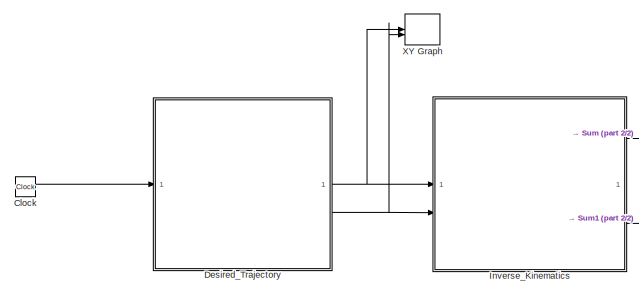
[diagram: root canvas - part 1/2, middle left region]
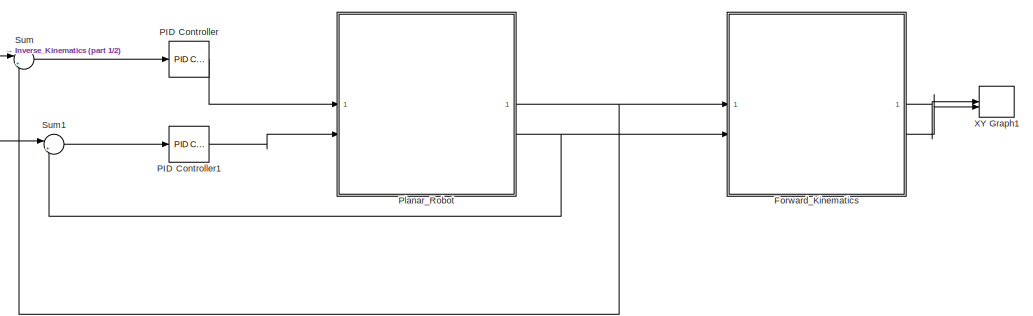
[diagram: root canvas - part 2/2, middle right region]
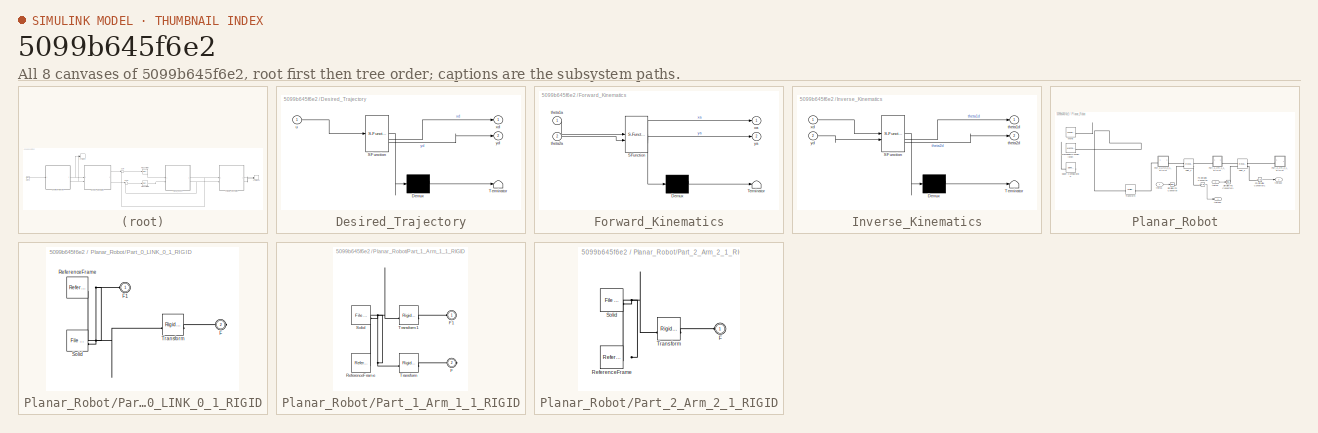
[diagram: thumbnail index - all 8 canvases of the model, root first then tree order]
MODEL slx_5099b645f6e2
KIND model
CONFIG AbsTol = auto
CONFIG EnableMultiTasking = off
CONFIG FixedStep = auto
CONFIG MaxStep = auto
CONFIG MinStep = auto
CONFIG RelTol = 1e-3
CONFIG SampleTimeConstraint = Unconstrained
CONFIG SolverName = VariableStepAuto
CONFIG StartTime = 0.0
CONFIG StopTime = 30
WORKSPACE source: external: MATLAB File  (data not in archive)
BLOCK [Clock] Clock
BLOCK [SubSystem] Desired_Trajectory
  ErrorFcn = Stateflow.Translate.translate
  PermitHierarchicalResolution = ExplicitOnly
  SFBlockType = MATLAB Function
  TreatAsAtomicUnit = on
BLOCK [Demux] Desired_Trajectory/ Demux 
  Outputs = 1
BLOCK [S-Function] Desired_Trajectory/ SFunction 
  EnableBusSupport = on
  FunctionName = sf_sfun
  PortCounts = [1 3]
  SFcnIsStateOwnerBlock = off
  SFunctionDeploymentMode = off
  Tag = Stateflow S-Function 2
BLOCK [Terminator] Desired_Trajectory/ Terminator 
BLOCK [Inport] Desired_Trajectory/u
BLOCK [Outport] Desired_Trajectory/xd
BLOCK [Outport] Desired_Trajectory/yd
  Port = 2
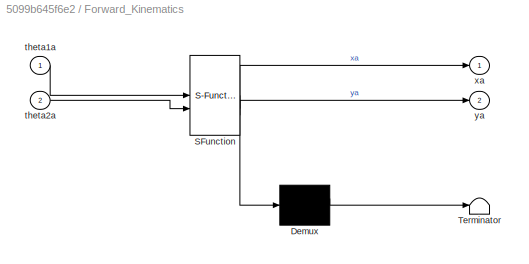
BLOCK [SubSystem] Forward_Kinematics
  ErrorFcn = Stateflow.Translate.translate
  PermitHierarchicalResolution = ExplicitOnly
  SFBlockType = MATLAB Function
  TreatAsAtomicUnit = on
BLOCK [Demux] Forward_Kinematics/ Demux 
  Outputs = 1
BLOCK [S-Function] Forward_Kinematics/ SFunction 
  EnableBusSupport = on
  FunctionName = sf_sfun
  PortCounts = [2 3]
  SFcnIsStateOwnerBlock = off
  SFunctionDeploymentMode = off
  Tag = Stateflow S-Function 3
BLOCK [Terminator] Forward_Kinematics/ Terminator 
BLOCK [Inport] Forward_Kinematics/theta1a
BLOCK [Inport] Forward_Kinematics/theta2a
  Port = 2
BLOCK [Outport] Forward_Kinematics/xa
BLOCK [Outport] Forward_Kinematics/ya
  Port = 2
BLOCK [SubSystem] Inverse_Kinematics
  ErrorFcn = Stateflow.Translate.translate
  PermitHierarchicalResolution = ExplicitOnly
  SFBlockType = MATLAB Function
  TreatAsAtomicUnit = on
BLOCK [Demux] Inverse_Kinematics/ Demux 
  Outputs = 1
BLOCK [S-Function] Inverse_Kinematics/ SFunction 
  EnableBusSupport = on
  FunctionName = sf_sfun
  PortCounts = [2 3]
  SFcnIsStateOwnerBlock = off
  SFunctionDeploymentMode = off
  Tag = Stateflow S-Function 1
BLOCK [Terminator] Inverse_Kinematics/ Terminator 
BLOCK [Outport] Inverse_Kinematics/theta1d
BLOCK [Outport] Inverse_Kinematics/theta2d
  Port = 2
BLOCK [Inport] Inverse_Kinematics/xd
BLOCK [Inport] Inverse_Kinematics/yd
  Port = 2
BLOCK [Reference] PID Controller  REF=slpidlib/PID Controller
  LibrarySourceBlock = simulink/Continuous/PID Controller
  SourceBlock = slpidlib/PID Controller
  SourceType = PID 1dof
BLOCK [Reference] PID Controller1  REF=slpidlib/PID Controller
  LibrarySourceBlock = simulink/Continuous/PID Controller
  SourceBlock = slpidlib/PID Controller
  SourceType = PID 1dof
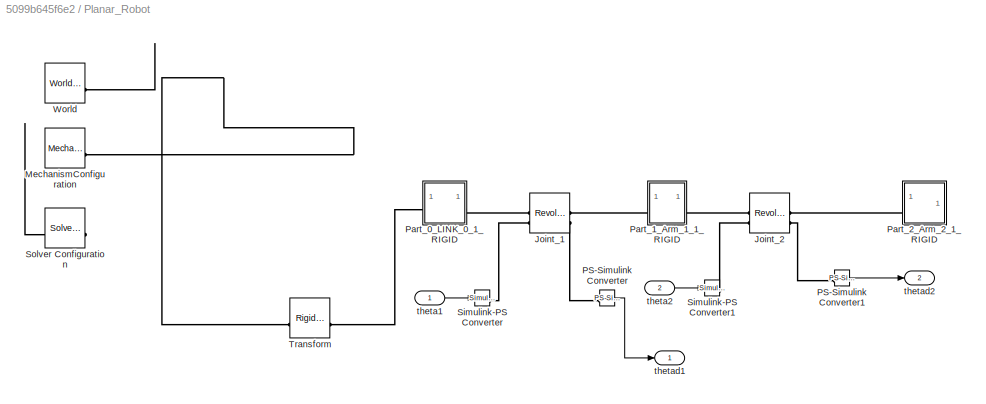
BLOCK [SubSystem] Planar_Robot
BLOCK [Reference] Planar_Robot/Joint_1  REF=sm_lib/Joints/Revolute Joint
  SourceBlock = sm_lib/Joints/Revolute Joint
  SourceType = Revolute Joint
BLOCK [Reference] Planar_Robot/Joint_2  REF=sm_lib/Joints/Revolute Joint
  SourceBlock = sm_lib/Joints/Revolute Joint
  SourceType = Revolute Joint
BLOCK [Reference] Planar_Robot/MechanismConfiguration  REF=sm_lib/Utilities/Mechanism
Configuration
  SourceBlock = sm_lib/Utilities/Mechanism\nConfiguration
  SourceType = Mechanism\nConfiguration
BLOCK [Reference] Planar_Robot/PS-Simulink Converter  REF=nesl_utility/PS-Simulink
Converter
  SourceBlock = nesl_utility/PS-Simulink\nConverter
  SourceType = PS-Simulink\nConverter
BLOCK [Reference] Planar_Robot/PS-Simulink Converter1  REF=nesl_utility/PS-Simulink
Converter
  SourceBlock = nesl_utility/PS-Simulink\nConverter
  SourceType = PS-Simulink\nConverter
BLOCK [SubSystem] Planar_Robot/Part_0_LINK_0_1_RIGID
BLOCK [PMIOPort] Planar_Robot/Part_0_LINK_0_1_RIGID/F
  Port = 2
  Side = Right
BLOCK [PMIOPort] Planar_Robot/Part_0_LINK_0_1_RIGID/F1
  Side = Left
BLOCK [Reference] Planar_Robot/Part_0_LINK_0_1_RIGID/ReferenceFrame  REF=sm_lib/Frames and
Transforms/Reference
Frame
  SourceBlock = sm_lib/Frames and\nTransforms/Reference\nFrame
  SourceType = Reference\nFrame
BLOCK [Reference] Planar_Robot/Part_0_LINK_0_1_RIGID/Solid  REF=sm_lib/Body Elements/File Solid
  SourceBlock = sm_lib/Body Elements/File Solid
  SourceType = File Solid
BLOCK [Reference] Planar_Robot/Part_0_LINK_0_1_RIGID/Transform  REF=sm_lib/Frames and
Transforms/Rigid
Transform
  SourceBlock = sm_lib/Frames and\nTransforms/Rigid\nTransform
  SourceType = Rigid\nTransform
BLOCK [SubSystem] Planar_Robot/Part_1_Arm_1_1_RIGID
BLOCK [PMIOPort] Planar_Robot/Part_1_Arm_1_1_RIGID/F
  Port = 2
  Side = Right
BLOCK [PMIOPort] Planar_Robot/Part_1_Arm_1_1_RIGID/F1
  Side = Left
BLOCK [Reference] Planar_Robot/Part_1_Arm_1_1_RIGID/ReferenceFrame  REF=sm_lib/Frames and
Transforms/Reference
Frame
  SourceBlock = sm_lib/Frames and\nTransforms/Reference\nFrame
  SourceType = Reference\nFrame
BLOCK [Reference] Planar_Robot/Part_1_Arm_1_1_RIGID/Solid  REF=sm_lib/Body Elements/File Solid
  SourceBlock = sm_lib/Body Elements/File Solid
  SourceType = File Solid
BLOCK [Reference] Planar_Robot/Part_1_Arm_1_1_RIGID/Transform  REF=sm_lib/Frames and
Transforms/Rigid
Transform
  SourceBlock = sm_lib/Frames and\nTransforms/Rigid\nTransform
  SourceType = Rigid\nTransform
BLOCK [Reference] Planar_Robot/Part_1_Arm_1_1_RIGID/Transform1  REF=sm_lib/Frames and
Transforms/Rigid
Transform
  SourceBlock = sm_lib/Frames and\nTransforms/Rigid\nTransform
  SourceType = Rigid\nTransform
BLOCK [SubSystem] Planar_Robot/Part_2_Arm_2_1_RIGID
BLOCK [PMIOPort] Planar_Robot/Part_2_Arm_2_1_RIGID/F
  Side = Left
BLOCK [Reference] Planar_Robot/Part_2_Arm_2_1_RIGID/ReferenceFrame  REF=sm_lib/Frames and
Transforms/Reference
Frame
  SourceBlock = sm_lib/Frames and\nTransforms/Reference\nFrame
  SourceType = Reference\nFrame
BLOCK [Reference] Planar_Robot/Part_2_Arm_2_1_RIGID/Solid  REF=sm_lib/Body Elements/File Solid
  SourceBlock = sm_lib/Body Elements/File Solid
  SourceType = File Solid
BLOCK [Reference] Planar_Robot/Part_2_Arm_2_1_RIGID/Transform  REF=sm_lib/Frames and
Transforms/Rigid
Transform
  SourceBlock = sm_lib/Frames and\nTransforms/Rigid\nTransform
  SourceType = Rigid\nTransform
BLOCK [Reference] Planar_Robot/Simulink-PS Converter  REF=nesl_utility/Simulink-PS
Converter
  SourceBlock = nesl_utility/Simulink-PS\nConverter
  SourceType = Simulink-PS\nConverter
BLOCK [Reference] Planar_Robot/Simulink-PS Converter1  REF=nesl_utility/Simulink-PS
Converter
  SourceBlock = nesl_utility/Simulink-PS\nConverter
  SourceType = Simulink-PS\nConverter
BLOCK [Reference] Planar_Robot/Solver Configuration  REF=nesl_utility/Solver
Configuration
  SourceBlock = nesl_utility/Solver\nConfiguration
  SourceType = Solver\nConfiguration
BLOCK [Reference] Planar_Robot/Transform  REF=sm_lib/Frames and
Transforms/Rigid
Transform
  SourceBlock = sm_lib/Frames and\nTransforms/Rigid\nTransform
  SourceType = Rigid\nTransform
BLOCK [Reference] Planar_Robot/World  REF=sm_lib/Frames and
Transforms/World Frame
  SourceBlock = sm_lib/Frames and\nTransforms/World Frame
  SourceType = World Frame
BLOCK [Inport] Planar_Robot/theta1
BLOCK [Inport] Planar_Robot/theta2
  Port = 2
BLOCK [Outport] Planar_Robot/thetad1
BLOCK [Outport] Planar_Robot/thetad2
  Port = 2
BLOCK [Sum] Sum
  Inputs = |+-
BLOCK [Sum] Sum1
  Inputs = |+-
BLOCK [Record] XY Graph
  CompatibilityTag = XY
  FileSettingsInternal = {"entries":[{"content":{"excelSettings":{"content":{},"type":"Streamout.ExcelSettings"}},"type":"Streamout.FileSettingStorage","uuid":""}],"packageUris":["http:\/\/schema.mathworks.com\/mf0\/streamout_blocks\/R2020a"],"version":"1.0"}
  Layout = [1 1]
  SignalsInternal = {"entries":[{"content":{"signals":[{"content":{"blockPath":[],"dimensions":[1],"domain":"","lineColor":"#a2142f","plots":[ 1 ],"port":1,"sid":[""],"signalID":1,"signalName":"Desired_Trajectory:1"},"type":"RecordBlkView.Signal","uuid":""},{"content":{"blockPath":[],"dimensions":[1],"domain":"","lineColor":"#139fff","plots":[ 1 ],"port":2,"sid":[""],"signalID":2,"signalName":"Desired_Trajectory:2"},...<+186ch>
  VisualizationBindings = {"xyplotplugin":{"info":[{"series":[{"bindingParametersList":[{"parameter":"X-Axis","signalID":1,"signalName":"Desired_Trajectory:1"},{"parameter":"Y-Axis","signalID":2,"signalName":"Desired_Trajectory:2"}],"seriesID":0}],"subplotID":1}]}}
BLOCK [Record] XY Graph1
  CompatibilityTag = XY
  FileSettingsInternal = {"entries":[{"content":{"excelSettings":{"content":{},"type":"Streamout.ExcelSettings"}},"type":"Streamout.FileSettingStorage","uuid":""}],"packageUris":["http:\/\/schema.mathworks.com\/mf0\/streamout_blocks\/R2020a"],"version":"1.0"}
  Layout = [1 1]
  SignalsInternal = {"entries":[{"content":{"signals":[{"content":{"blockPath":[],"dimensions":[1],"domain":"","lineColor":"#a2142f","plots":[ 1 ],"port":1,"sid":[""],"signalID":1,"signalName":"Forward_Kinematics:1"},"type":"RecordBlkView.Signal","uuid":""},{"content":{"blockPath":[],"dimensions":[1],"domain":"","lineColor":"#139fff","plots":[ 1 ],"port":2,"sid":[""],"signalID":2,"signalName":"Forward_Kinematics:2"},...<+186ch>
  VisualizationBindings = {"xyplotplugin":{"info":[{"series":[{"bindingParametersList":[{"parameter":"X-Axis","signalID":1,"signalName":"Forward_Kinematics:1"},{"parameter":"Y-Axis","signalID":2,"signalName":"Forward_Kinematics:2"}],"seriesID":0}],"subplotID":1}]}}
LINE Clock:1 -> Desired_Trajectory:1
NET Desired_Trajectory:1 -> Inverse_Kinematics:1, XY Graph:1
NET Desired_Trajectory:2 -> Inverse_Kinematics:2, XY Graph:2
LINE Forward_Kinematics:1 -> XY Graph1:1
LINE Forward_Kinematics:2 -> XY Graph1:2
LINE Inverse_Kinematics:1 -> Sum:1
LINE Inverse_Kinematics:2 -> Sum1:1
LINE PID Controller1:1 -> Planar_Robot:2
LINE PID Controller:1 -> Planar_Robot:1
LINE Planar_Robot/PS-Simulink Converter1:1 -> Planar_Robot/thetad2:1
LINE Planar_Robot/PS-Simulink Converter:1 -> Planar_Robot/thetad1:1
LINE Planar_Robot/theta1:1 -> Planar_Robot/Simulink-PS Converter:1
LINE Planar_Robot/theta2:1 -> Planar_Robot/Simulink-PS Converter1:1
NET Planar_Robot:1 -> Forward_Kinematics:1, Sum:2
NET Planar_Robot:2 -> Forward_Kinematics:2, Sum1:2
LINE Sum1:1 -> PID Controller1:1
LINE Sum:1 -> PID Controller:1
PLINE Planar_Robot/Joint_1:LConn1 -- Planar_Robot/Part_0_LINK_0_1_RIGID:RConn1
PLINE Planar_Robot/Joint_1:LConn2 -- Planar_Robot/Simulink-PS Converter:RConn1
PLINE Planar_Robot/Joint_1:RConn1 -- Planar_Robot/Part_1_Arm_1_1_RIGID:LConn1
PLINE Planar_Robot/Joint_1:RConn2 -- Planar_Robot/PS-Simulink Converter:LConn1
PLINE Planar_Robot/Joint_2:LConn1 -- Planar_Robot/Part_1_Arm_1_1_RIGID:RConn1
PLINE Planar_Robot/Joint_2:LConn2 -- Planar_Robot/Simulink-PS Converter1:RConn1
PLINE Planar_Robot/Joint_2:RConn1 -- Planar_Robot/Part_2_Arm_2_1_RIGID:LConn1
PLINE Planar_Robot/Joint_2:RConn2 -- Planar_Robot/PS-Simulink Converter1:LConn1
PNET net1: Planar_Robot/MechanismConfiguration:RConn1 -- Planar_Robot/Solver Configuration:RConn1 -- Planar_Robot/Transform:LConn1 -- Planar_Robot/World:RConn1
PNET net2: Planar_Robot/Part_0_LINK_0_1_RIGID/F1:RConn1 -- Planar_Robot/Part_0_LINK_0_1_RIGID/ReferenceFrame:RConn1 -- Planar_Robot/Part_0_LINK_0_1_RIGID/Solid:RConn1 -- Planar_Robot/Part_0_LINK_0_1_RIGID/Transform:LConn1
PLINE Planar_Robot/Part_0_LINK_0_1_RIGID/F:RConn1 -- Planar_Robot/Part_0_LINK_0_1_RIGID/Transform:RConn1
PLINE Planar_Robot/Part_0_LINK_0_1_RIGID:LConn1 -- Planar_Robot/Transform:RConn1
PLINE Planar_Robot/Part_1_Arm_1_1_RIGID/F1:RConn1 -- Planar_Robot/Part_1_Arm_1_1_RIGID/Transform1:RConn1
PLINE Planar_Robot/Part_1_Arm_1_1_RIGID/F:RConn1 -- Planar_Robot/Part_1_Arm_1_1_RIGID/Transform:RConn1
PNET net3: Planar_Robot/Part_1_Arm_1_1_RIGID/ReferenceFrame:RConn1 -- Planar_Robot/Part_1_Arm_1_1_RIGID/Solid:RConn1 -- Planar_Robot/Part_1_Arm_1_1_RIGID/Transform1:LConn1 -- Planar_Robot/Part_1_Arm_1_1_RIGID/Transform:LConn1
PLINE Planar_Robot/Part_2_Arm_2_1_RIGID/F:RConn1 -- Planar_Robot/Part_2_Arm_2_1_RIGID/Transform:RConn1
PNET net4: Planar_Robot/Part_2_Arm_2_1_RIGID/ReferenceFrame:RConn1 -- Planar_Robot/Part_2_Arm_2_1_RIGID/Solid:RConn1 -- Planar_Robot/Part_2_Arm_2_1_RIGID/Transform:LConn1
note: NET lines group one-source signal fan-out (src -> all destinations, sorted); 1:1 wires keep LINE; PNET lines group multi-terminal physical nets as a canonical sorted terminal list (undirected conserving connections); 2-terminal nets keep the pairwise PLINE form
CHART Desired_Trajectory states=1 transitions=1
  STATE_LABEL 'eML_blk_kernel()'
  STATE_LABEL 'SCRIPT:\nfunction [xd, yd] = Circular_Trajectory(u)\n\tr = 0.5; % Radius of the circle\n\txc = 1;  % Center X\n\tyc = 1;  % Center Y\n\txd = xc + r * cos((2*pi/5) * u);\n\tyd = yc + r * sin((2*pi/5) * u);\nend\n\n\n'
CHART Forward_Kinematics states=1 transitions=1
  STATE_LABEL 'eML_blk_kernel()'
  STATE_LABEL 'SCRIPT:\nfunction [xa,ya] = Forward_Kinematics(theta1a,theta2a)\nl1=1;\nl2=1;\nxa = l1*cos(theta1a) + l2*cos(theta1a + theta2a);\nya = l1*sin(theta1a) + l2*sin(theta1a + theta2a);\nend\n\n'
CHART Inverse_Kinematics states=1 transitions=1
  STATE_LABEL 'eML_blk_kernel()'
  STATE_LABEL 'SCRIPT:\nfunction [theta1d,theta2d] = inverse_kinematics(xd,yd)\nl1=1;\nl2=1;\ntheta2d = acos(((xd*xd)+(yd*yd)-(l1*l1)-(l2*l2))/(2*l1*l2));\ntheta1d = atan(yd/xd)-atan((l2*sin(theta2d))/(l1+l2*cos(theta2d)));\nend\n'
CHART  states=0 transitions=0
CHART  states=0 transitions=0
CHART  states=0 transitions=0
